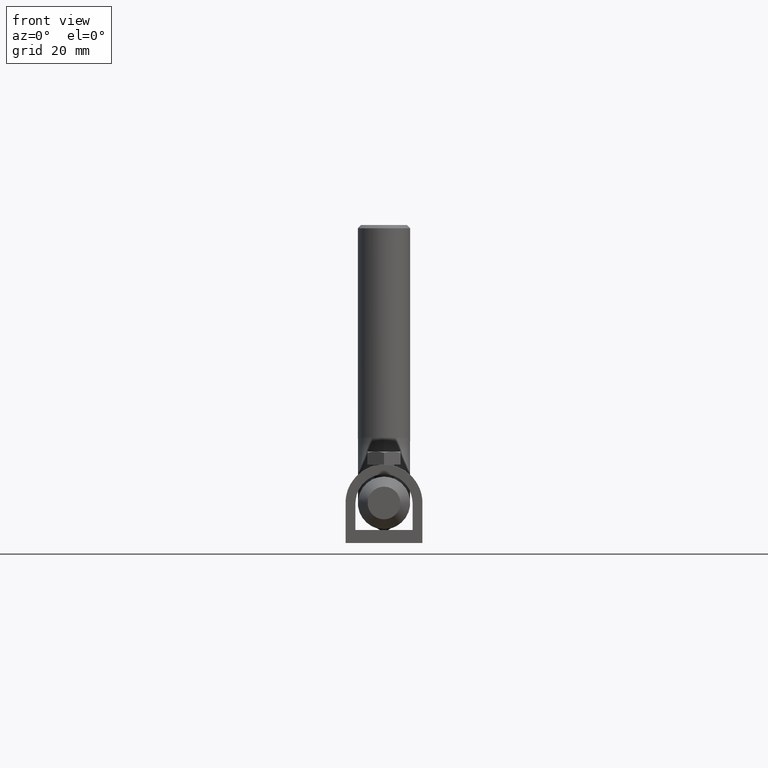
[diagram: clean part render]
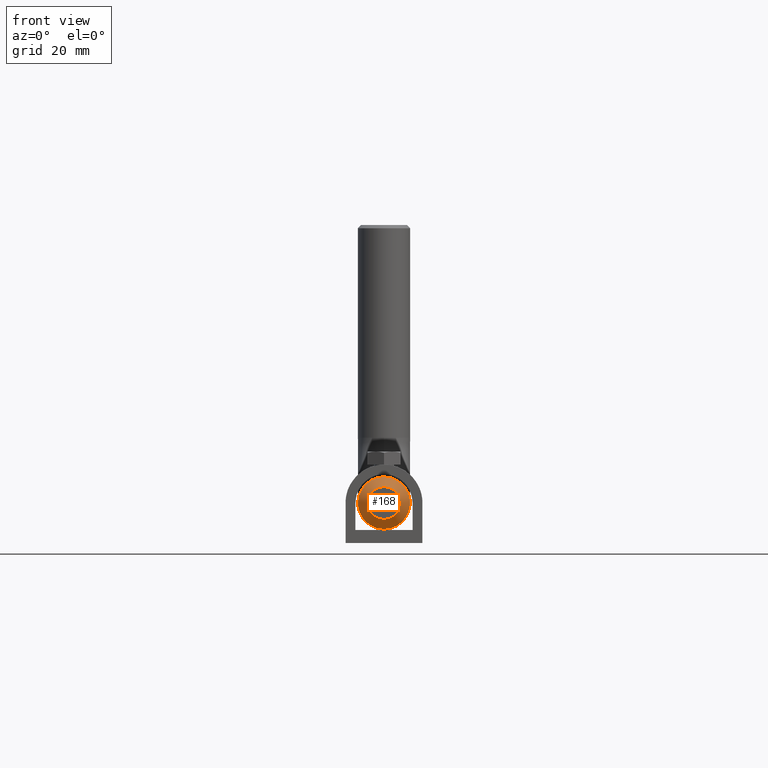
[diagram: same view with one face highlighted and labeled with its STEP entity id]
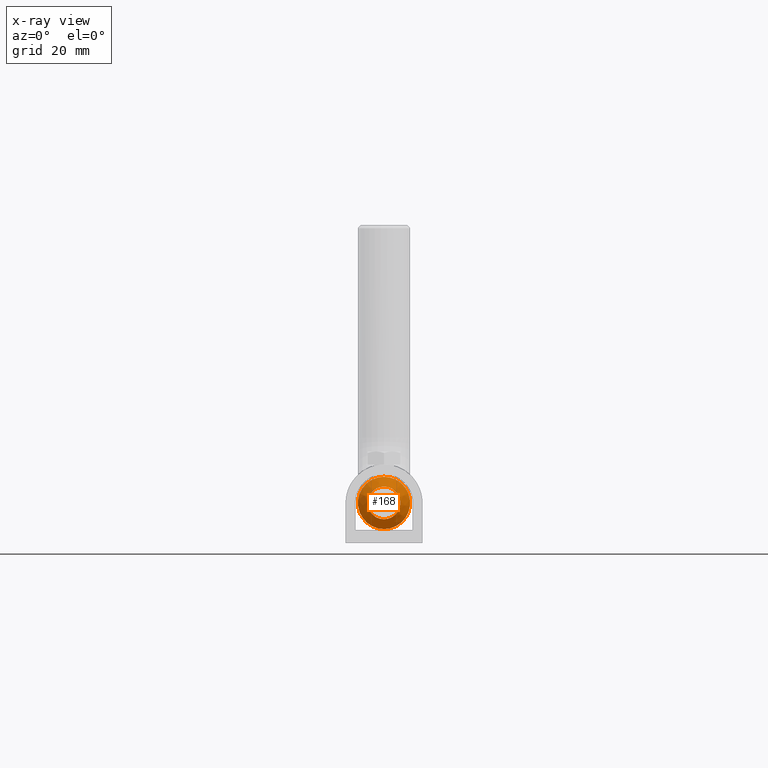
[diagram: x-ray of the same camera — body ghosted, the highlighted face saturated]
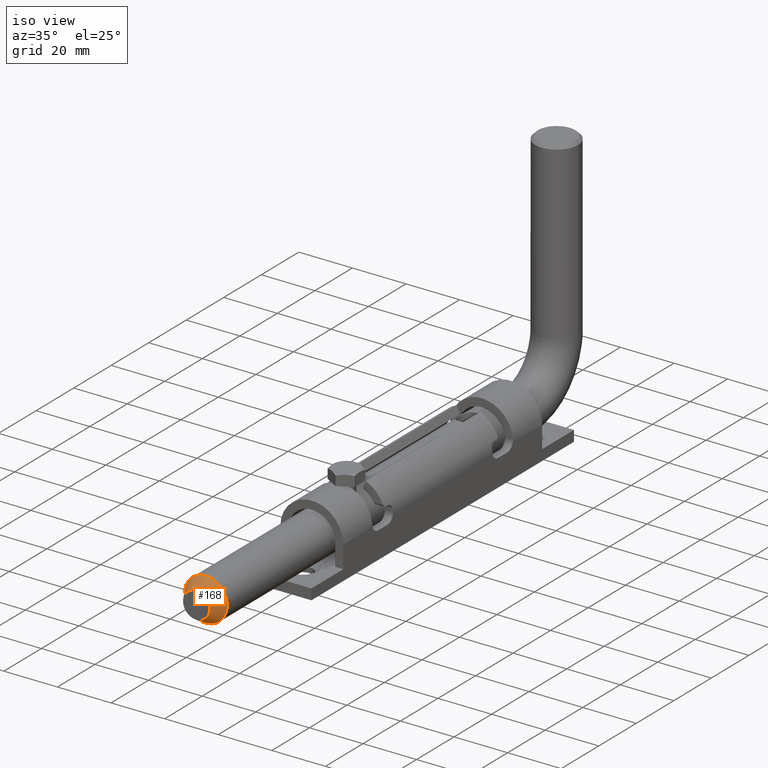
[diagram: same view with one face highlighted and labeled with its STEP entity id]
A machine part, front view. The second image highlights one B-rep face of the part: STEP entity #168.
The next image is the same camera in x-ray: the body ghosted, the highlighted face saturated — about 0% of this face is hidden behind the body in this view.
A second angle (iso view) of the same face is appended — the face is thin or edge-on in the first view.
In plain terms, the highlighted conical surface has half-angle 30.964 deg.
Its self-contained STEP definition (entity closure, byte-faithful):
#168 = ADVANCED_FACE ( 'NONE', ( #2130, #6793 ), #10037, .T. ) ;
#357 = DIRECTION ( 'NONE',  ( 0.000000000000000000, 0.000000000000000000, -1.000000000000000000 ) ) ;
#1540 = DIRECTION ( 'NONE',  ( -0.000000000000000000, -1.000000000000000000, -0.000000000000000000 ) ) ;
#1950 = CARTESIAN_POINT ( 'NONE',  ( 0.000000000000000000, 5.000000000000000000, 0.000000000000000000 ) ) ;
#2130 = FACE_BOUND ( 'NONE', #11828, .T. ) ;
#2245 = VERTEX_POINT ( 'NONE', #13643 ) ;
#3362 = EDGE_LOOP ( 'NONE', ( #14091 ) ) ;
#4048 = AXIS2_PLACEMENT_3D ( 'NONE', #13168, #1540, #357 ) ;
#4477 = ORIENTED_EDGE ( 'NONE', *, *, #7086, .F. ) ;
#4737 = DIRECTION ( 'NONE',  ( 0.000000000000000000, 1.000000000000000000, 0.000000000000000000 ) ) ;
#6793 = FACE_OUTER_BOUND ( 'NONE', #3362, .T. ) ;
#6883 = CARTESIAN_POINT ( 'NONE',  ( 0.000000000000000000, 0.000000000000000000, 0.000000000000000000 ) ) ;
#7086 = EDGE_CURVE ( 'NONE', #2245, #2245, #16024, .T. ) ;
#8794 = AXIS2_PLACEMENT_3D ( 'NONE', #6883, #13192, #13306 ) ;
#8834 = EDGE_CURVE ( 'NONE', #12344, #12344, #13117, .T. ) ;
#9386 = AXIS2_PLACEMENT_3D ( 'NONE', #1950, #4737, #12342 ) ;
#10037 = CONICAL_SURFACE ( 'NONE', #9386, 8.000000000000000000, 0.5404195002705841633 ) ;
#11828 = EDGE_LOOP ( 'NONE', ( #4477 ) ) ;
#12342 = DIRECTION ( 'NONE',  ( 0.000000000000000000, 0.000000000000000000, 1.000000000000000000 ) ) ;
#12344 = VERTEX_POINT ( 'NONE', #12401 ) ;
#12401 = CARTESIAN_POINT ( 'NONE',  ( 0.000000000000000000, 5.000000000000000000, -8.000000000000000000 ) ) ;
#13117 = CIRCLE ( 'NONE', #4048, 8.000000000000000000 ) ;
#13168 = CARTESIAN_POINT ( 'NONE',  ( 0.000000000000000000, 5.000000000000000000, 0.000000000000000000 ) ) ;
#13192 = DIRECTION ( 'NONE',  ( -0.000000000000000000, -1.000000000000000000, -0.000000000000000000 ) ) ;
#13306 = DIRECTION ( 'NONE',  ( 0.000000000000000000, 0.000000000000000000, -1.000000000000000000 ) ) ;
#13643 = CARTESIAN_POINT ( 'NONE',  ( 0.000000000000000000, 0.000000000000000000, -5.000000000000000000 ) ) ;
#14091 = ORIENTED_EDGE ( 'NONE', *, *, #8834, .T. ) ;
#16024 = CIRCLE ( 'NONE', #8794, 5.000000000000000000 ) ;